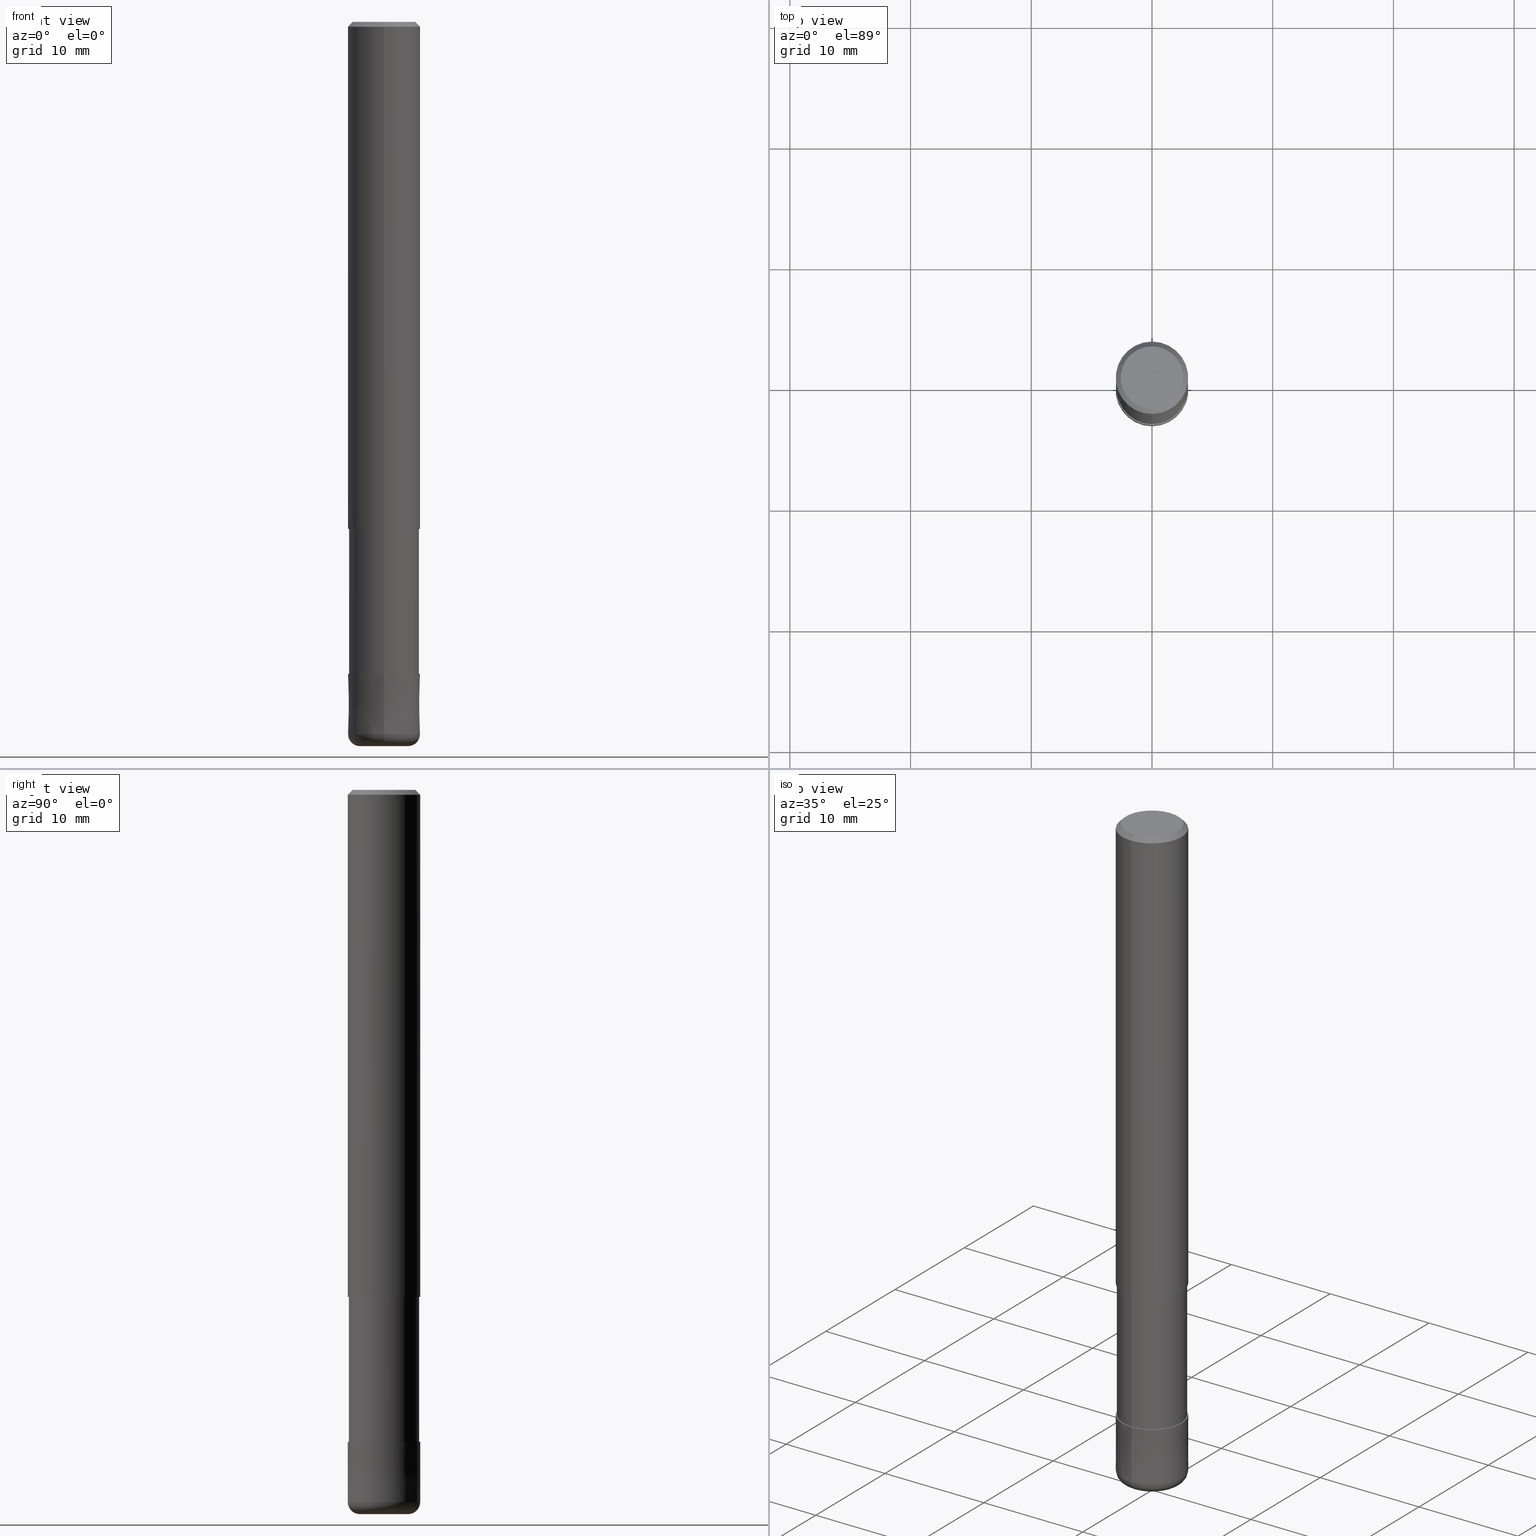
[diagram: canonical four-view strip — front | top / right | iso, engineering-drawing reading convention]
A machine part, canonical four-view strip (front | top / right | iso — engineering-drawing reading convention). The complete STEP part file that produces these views, byte-faithful:
ISO-10303-21;
HEADER;
FILE_DESCRIPTION(('no description'),'unknown implementation level');
FILE_NAME('CRRS4060-10-18-Huellk.stp','  ',('CIMSOURCE GmbH'),('CADClick - KiM GmbH - www.kimweb.de'),'unknown preprocess','ACIS','unknown authorization');
FILE_SCHEMA(('automotive_design'));
ENDSEC;
DATA;
#1=MECHANICAL_DESIGN_GEOMETRIC_PRESENTATION_REPRESENTATION(' ',(#14,#15,#16,#17,#18,#19,#20,#21,#22,#23,#24,#25,#26,#27,#28,#29,#30,#31,#32,#33,#34,#35,#36,#37,#38,#39,#40,#41,#42,#43,#44,#45,#46,#47,#48,#49,#50,#51,#52,#53,#54,#55,#56,#57,#58,#59,#60,#61,#62,#63,#64,#65,#66,#67,#68,#69,#70,#71,#72),#10);
#2=PRODUCT_DEFINITION_CONTEXT('',#73,'design');
#3=APPLICATION_PROTOCOL_DEFINITION('INTERNATIONAL STANDARD','automotive_design',1994,#73);
#4=PRODUCT_CATEGORY_RELATIONSHIP('NONE','NONE',#74,#75);
#5=SHAPE_DEFINITION_REPRESENTATION(#76,#77);
#6=PRODUCT_DEFINITION_CONTEXT('',#78,'design');
#7=APPLICATION_PROTOCOL_DEFINITION('INTERNATIONAL STANDARD','automotive_design',1994,#78);
#8=PRODUCT_CATEGORY_RELATIONSHIP('NONE','NONE',#79,#80);
#9=SHAPE_DEFINITION_REPRESENTATION(#81,#82);
#10= (GEOMETRIC_REPRESENTATION_CONTEXT(3)GLOBAL_UNCERTAINTY_ASSIGNED_CONTEXT((#85))GLOBAL_UNIT_ASSIGNED_CONTEXT((#87,#88,#89))REPRESENTATION_CONTEXT('NONE','WORKSPACE'));
#14=STYLED_ITEM('',(#91),#92);
#15=STYLED_ITEM('',(#93),#94);
#16=STYLED_ITEM('',(#95),#96);
#17=STYLED_ITEM('',(#97),#98);
#18=STYLED_ITEM('',(#99),#100);
#19=STYLED_ITEM('',(#101),#102);
#20=STYLED_ITEM('',(#103),#104);
#21=STYLED_ITEM('',(#105),#106);
#22=STYLED_ITEM('',(#107),#108);
#23=STYLED_ITEM('',(#109),#110);
#24=STYLED_ITEM('',(#111),#112);
#25=STYLED_ITEM('',(#113),#114);
#26=STYLED_ITEM('',(#115),#116);
#27=STYLED_ITEM('',(#117),#118);
#28=STYLED_ITEM('',(#119),#120);
#29=STYLED_ITEM('',(#121),#122);
#30=STYLED_ITEM('',(#123),#124);
#31=STYLED_ITEM('',(#125),#126);
#32=STYLED_ITEM('',(#127),#128);
#33=STYLED_ITEM('',(#129),#130);
#34=STYLED_ITEM('',(#131),#132);
#35=STYLED_ITEM('',(#133),#134);
#36=STYLED_ITEM('',(#135),#136);
#37=STYLED_ITEM('',(#137),#138);
#38=STYLED_ITEM('',(#139),#140);
#39=STYLED_ITEM('',(#141),#142);
#40=STYLED_ITEM('',(#143),#144);
#41=STYLED_ITEM('',(#145),#146);
#42=STYLED_ITEM('',(#147),#148);
#43=STYLED_ITEM('',(#149),#150);
#44=STYLED_ITEM('',(#151),#152);
#45=STYLED_ITEM('',(#153),#154);
#46=STYLED_ITEM('',(#155),#156);
#47=STYLED_ITEM('',(#157),#158);
#48=STYLED_ITEM('',(#159),#160);
#49=STYLED_ITEM('',(#161),#162);
#50=STYLED_ITEM('',(#163),#164);
#51=STYLED_ITEM('',(#165),#166);
#52=STYLED_ITEM('',(#167),#168);
#53=STYLED_ITEM('',(#169),#170);
#54=STYLED_ITEM('',(#171),#172);
#55=STYLED_ITEM('',(#173),#174);
#56=STYLED_ITEM('',(#175),#176);
#57=STYLED_ITEM('',(#177),#178);
#58=STYLED_ITEM('',(#179),#180);
#59=STYLED_ITEM('',(#181),#182);
#60=STYLED_ITEM('',(#183),#184);
#61=STYLED_ITEM('',(#185),#186);
#62=STYLED_ITEM('',(#187),#188);
#63=STYLED_ITEM('',(#189),#190);
#64=STYLED_ITEM('',(#191),#192);
#65=STYLED_ITEM('',(#193),#194);
#66=STYLED_ITEM('',(#195),#196);
#67=STYLED_ITEM('',(#197),#198);
#68=STYLED_ITEM('',(#199),#200);
#69=STYLED_ITEM('',(#201),#202);
#70=STYLED_ITEM('',(#203),#204);
#71=STYLED_ITEM('',(#205),#206);
#72=STYLED_ITEM('',(#207),#208);
#73=APPLICATION_CONTEXT(' ');
#74=PRODUCT_CATEGORY('part','NONE');
#75=PRODUCT_RELATED_PRODUCT_CATEGORY('detail',' ',(#209));
#76=PRODUCT_DEFINITION_SHAPE('NONE','NONE',#210);
#77=ADVANCED_BREP_SHAPE_REPRESENTATION('1',(#184,#211),#10);
#78=APPLICATION_CONTEXT(' ');
#79=PRODUCT_CATEGORY('part','NONE');
#80=PRODUCT_RELATED_PRODUCT_CATEGORY('detail',' ',(#212));
#81=PRODUCT_DEFINITION_SHAPE('NONE','NONE',#213);
#82=ADVANCED_BREP_SHAPE_REPRESENTATION('2',(#138,#214),#10);
#85=UNCERTAINTY_MEASURE_WITH_UNIT(LENGTH_MEASURE(1.0E-006),#87,'','');
#87= (CONVERSION_BASED_UNIT('MILLIMETRE',#217)LENGTH_UNIT()NAMED_UNIT(#220));
#88= (NAMED_UNIT(#222)PLANE_ANGLE_UNIT()SI_UNIT($,.RADIAN.));
#89= (NAMED_UNIT(#222)SOLID_ANGLE_UNIT()SI_UNIT($,.STERADIAN.));
#91=PRESENTATION_STYLE_ASSIGNMENT((#228));
#92=ADVANCED_FACE('',(#229,#230),#231,.T.);
#93=PRESENTATION_STYLE_ASSIGNMENT((#232));
#94=ADVANCED_FACE('',(#233),#234,.T.);
#95=PRESENTATION_STYLE_ASSIGNMENT((#235));
#96=EDGE_CURVE('',#130,#132,#236,.T.);
#97=PRESENTATION_STYLE_ASSIGNMENT((#237));
#98=VERTEX_POINT('',#238);
#99=PRESENTATION_STYLE_ASSIGNMENT((#239));
#100=VERTEX_POINT('',#240);
#101=PRESENTATION_STYLE_ASSIGNMENT((#241));
#102=EDGE_CURVE('',#98,#134,#242,.T.);
#103=PRESENTATION_STYLE_ASSIGNMENT((#243));
#104=ADVANCED_FACE('',(#244),#245,.T.);
#105=PRESENTATION_STYLE_ASSIGNMENT((#246));
#106=EDGE_CURVE('',#140,#144,#247,.T.);
#107=PRESENTATION_STYLE_ASSIGNMENT((#248));
#108=ADVANCED_FACE('',(#249),#250,.T.);
#109=PRESENTATION_STYLE_ASSIGNMENT((#251));
#110=ADVANCED_FACE('',(#252),#253,.T.);
#111=PRESENTATION_STYLE_ASSIGNMENT((#254));
#112=EDGE_CURVE('',#134,#156,#255,.T.);
#113=PRESENTATION_STYLE_ASSIGNMENT((#256));
#114=VERTEX_POINT('',#257);
#115=PRESENTATION_STYLE_ASSIGNMENT((#258));
#116=EDGE_CURVE('',#186,#140,#259,.T.);
#117=PRESENTATION_STYLE_ASSIGNMENT((#260));
#118=ADVANCED_FACE('',(#261),#262,.T.);
#119=PRESENTATION_STYLE_ASSIGNMENT((#263));
#120=EDGE_CURVE('',#144,#140,#264,.T.);
#121=PRESENTATION_STYLE_ASSIGNMENT((#265));
#122=EDGE_CURVE('',#134,#98,#266,.T.);
#123=PRESENTATION_STYLE_ASSIGNMENT((#267));
#124=EDGE_CURVE('',#132,#164,#268,.T.);
#125=PRESENTATION_STYLE_ASSIGNMENT((#269));
#126=EDGE_CURVE('',#204,#142,#270,.T.);
#127=PRESENTATION_STYLE_ASSIGNMENT((#271));
#128=VERTEX_POINT('',#272);
#129=PRESENTATION_STYLE_ASSIGNMENT((#273));
#130=VERTEX_POINT('',#274);
#131=PRESENTATION_STYLE_ASSIGNMENT((#275));
#132=VERTEX_POINT('',#276);
#133=PRESENTATION_STYLE_ASSIGNMENT((#277));
#134=VERTEX_POINT('',#278);
#135=PRESENTATION_STYLE_ASSIGNMENT((#279));
#136=EDGE_CURVE('',#186,#128,#280,.T.);
#137=PRESENTATION_STYLE_ASSIGNMENT((#281));
#138=MANIFOLD_SOLID_BREP('2',#282);
#139=PRESENTATION_STYLE_ASSIGNMENT((#283));
#140=VERTEX_POINT('',#284);
#141=PRESENTATION_STYLE_ASSIGNMENT((#285));
#142=VERTEX_POINT('',#286);
#143=PRESENTATION_STYLE_ASSIGNMENT((#287));
#144=VERTEX_POINT('',#288);
#145=PRESENTATION_STYLE_ASSIGNMENT((#289));
#146=EDGE_CURVE('',#208,#114,#290,.T.);
#147=PRESENTATION_STYLE_ASSIGNMENT((#291));
#148=ADVANCED_FACE('',(#292),#293,.T.);
#149=PRESENTATION_STYLE_ASSIGNMENT((#294));
#150=ADVANCED_FACE('',(#295),#296,.T.);
#151=PRESENTATION_STYLE_ASSIGNMENT((#297));
#152=ADVANCED_FACE('',(#298),#299,.T.);
#153=PRESENTATION_STYLE_ASSIGNMENT((#300));
#154=EDGE_CURVE('',#142,#182,#301,.T.);
#155=PRESENTATION_STYLE_ASSIGNMENT((#302));
#156=VERTEX_POINT('',#303);
#157=PRESENTATION_STYLE_ASSIGNMENT((#304));
#158=ADVANCED_FACE('',(#305),#306,.T.);
#159=PRESENTATION_STYLE_ASSIGNMENT((#307));
#160=ADVANCED_FACE('',(#308),#309,.T.);
#161=PRESENTATION_STYLE_ASSIGNMENT((#310));
#162=EDGE_CURVE('',#114,#208,#311,.T.);
#163=PRESENTATION_STYLE_ASSIGNMENT((#312));
#164=VERTEX_POINT('',#313);
#165=PRESENTATION_STYLE_ASSIGNMENT((#314));
#166=ADVANCED_FACE('',(#315),#316,.T.);
#167=PRESENTATION_STYLE_ASSIGNMENT((#317));
#168=EDGE_CURVE('',#144,#128,#318,.T.);
#169=PRESENTATION_STYLE_ASSIGNMENT((#319));
#170=EDGE_CURVE('',#156,#130,#320,.T.);
#171=PRESENTATION_STYLE_ASSIGNMENT((#321));
#172=ADVANCED_FACE('',(#322),#323,.T.);
#173=PRESENTATION_STYLE_ASSIGNMENT((#324));
#174=EDGE_CURVE('',#208,#144,#325,.T.);
#175=PRESENTATION_STYLE_ASSIGNMENT((#326));
#176=EDGE_CURVE('',#164,#156,#327,.T.);
#177=PRESENTATION_STYLE_ASSIGNMENT((#328));
#178=EDGE_CURVE('',#204,#100,#329,.T.);
#179=PRESENTATION_STYLE_ASSIGNMENT((#330));
#180=EDGE_CURVE('',#100,#204,#331,.T.);
#181=PRESENTATION_STYLE_ASSIGNMENT((#332));
#182=VERTEX_POINT('',#333);
#183=PRESENTATION_STYLE_ASSIGNMENT((#334));
#184=MANIFOLD_SOLID_BREP('1',#335);
#185=PRESENTATION_STYLE_ASSIGNMENT((#336));
#186=VERTEX_POINT('',#337);
#187=PRESENTATION_STYLE_ASSIGNMENT((#338));
#188=ADVANCED_FACE('',(#339),#340,.T.);
#189=PRESENTATION_STYLE_ASSIGNMENT((#341));
#190=EDGE_CURVE('',#130,#156,#342,.T.);
#191=PRESENTATION_STYLE_ASSIGNMENT((#343));
#192=EDGE_CURVE('',#130,#98,#344,.T.);
#193=PRESENTATION_STYLE_ASSIGNMENT((#345));
#194=EDGE_CURVE('',#182,#100,#346,.T.);
#195=PRESENTATION_STYLE_ASSIGNMENT((#347));
#196=EDGE_CURVE('',#140,#114,#348,.T.);
#197=PRESENTATION_STYLE_ASSIGNMENT((#349));
#198=EDGE_CURVE('',#182,#142,#350,.T.);
#199=PRESENTATION_STYLE_ASSIGNMENT((#351));
#200=EDGE_CURVE('',#128,#186,#352,.T.);
#201=PRESENTATION_STYLE_ASSIGNMENT((#353));
#202=ADVANCED_FACE('',(#354),#355,.T.);
#203=PRESENTATION_STYLE_ASSIGNMENT((#356));
#204=VERTEX_POINT('',#357);
#205=PRESENTATION_STYLE_ASSIGNMENT((#358));
#206=EDGE_CURVE('',#164,#132,#359,.T.);
#207=PRESENTATION_STYLE_ASSIGNMENT((#360));
#208=VERTEX_POINT('',#361);
#209=PRODUCT('1','1','PART-1-DESC',(#362));
#210=PRODUCT_DEFINITION('NONE','NONE',#363,#2);
#211=AXIS2_PLACEMENT_3D('',#364,#365,#366);
#212=PRODUCT('2','2','PART-2-DESC',(#367));
#213=PRODUCT_DEFINITION('NONE','NONE',#368,#6);
#214=AXIS2_PLACEMENT_3D('',#369,#370,#371);
#217=LENGTH_MEASURE_WITH_UNIT(LENGTH_MEASURE(1.0),#372);
#220=DIMENSIONAL_EXPONENTS(1.0,0.0,0.0,0.0,0.0,0.0,0.0);
#222=DIMENSIONAL_EXPONENTS(0.0,0.0,0.0,0.0,0.0,0.0,0.0);
#228=SURFACE_STYLE_USAGE(.BOTH.,#373);
#229=FACE_OUTER_BOUND('',#374,.T.);
#230=FACE_BOUND('',#375,.T.);
#231=PLANE('',#376);
#232=SURFACE_STYLE_USAGE(.BOTH.,#377);
#233=FACE_OUTER_BOUND('',#378,.T.);
#234=CYLINDRICAL_SURFACE('',#379,3.0);
#235=CURVE_STYLE('',#380,POSITIVE_LENGTH_MEASURE(1.0E-006),#381);
#236=CIRCLE('',#382,1.0);
#237=POINT_STYLE(' ',#383,POSITIVE_LENGTH_MEASURE(1.0E-006),#384);
#238=CARTESIAN_POINT('',(3.67369660083175E-016,-2.9999,-54.0));
#239=POINT_STYLE(' ',#385,POSITIVE_LENGTH_MEASURE(1.0E-006),#386);
#240=CARTESIAN_POINT('',(3.56354325930543E-016,-2.90995,-42.0));
#241=CURVE_STYLE('',#387,POSITIVE_LENGTH_MEASURE(1.0E-006),#388);
#242=CIRCLE('',#389,2.9999);
#243=SURFACE_STYLE_USAGE(.BOTH.,#390);
#244=FACE_OUTER_BOUND('',#391,.T.);
#245=CYLINDRICAL_SURFACE('',#392,3.0);
#246=CURVE_STYLE('',#393,POSITIVE_LENGTH_MEASURE(1.0E-006),#394);
#247=CIRCLE('',#395,3.0);
#248=SURFACE_STYLE_USAGE(.BOTH.,#396);
#249=FACE_OUTER_BOUND('',#397,.T.);
#250=TOROIDAL_SURFACE('',#398,2.0,1.0);
#251=SURFACE_STYLE_USAGE(.BOTH.,#399);
#252=FACE_OUTER_BOUND('',#400,.T.);
#253=TOROIDAL_SURFACE('',#401,2.0,1.0);
#254=CURVE_STYLE('',#402,POSITIVE_LENGTH_MEASURE(1.0E-006),#403);
#255=LINE('',#404,#405);
#256=POINT_STYLE(' ',#406,POSITIVE_LENGTH_MEASURE(1.0E-006),#407);
#257=CARTESIAN_POINT('',(3.18397651993818E-016,-2.6,0.0));
#258=CURVE_STYLE('',#408,POSITIVE_LENGTH_MEASURE(1.0E-006),#409);
#259=LINE('',#410,#411);
#260=SURFACE_STYLE_USAGE(.BOTH.,#412);
#261=FACE_OUTER_BOUND('',#413,.T.);
#262=CONICAL_SURFACE('',#414,2.8,0.78539816339745);
#263=CURVE_STYLE('',#415,POSITIVE_LENGTH_MEASURE(1.0E-006),#416);
#264=CIRCLE('',#417,3.0);
#265=CURVE_STYLE('',#418,POSITIVE_LENGTH_MEASURE(1.0E-006),#419);
#266=CIRCLE('',#420,2.9999);
#267=CURVE_STYLE('',#421,POSITIVE_LENGTH_MEASURE(1.0E-006),#422);
#268=CIRCLE('',#423,2.0);
#269=CURVE_STYLE('',#424,POSITIVE_LENGTH_MEASURE(1.0E-006),#425);
#270=LINE('',#426,#427);
#271=POINT_STYLE(' ',#428,POSITIVE_LENGTH_MEASURE(1.0E-006),#429);
#272=CARTESIAN_POINT('',(0.0,3.0,-42.0));
#273=POINT_STYLE(' ',#430,POSITIVE_LENGTH_MEASURE(1.0E-006),#431);
#274=CARTESIAN_POINT('',(3.67381906146713E-016,-3.0,-59.0));
#275=POINT_STYLE(' ',#432,POSITIVE_LENGTH_MEASURE(1.0E-006),#433);
#276=CARTESIAN_POINT('',(2.44921270764475E-016,-2.0,-60.0));
#277=POINT_STYLE(' ',#434,POSITIVE_LENGTH_MEASURE(1.0E-006),#435);
#278=CARTESIAN_POINT('',(0.0,2.9999,-54.0));
#279=CURVE_STYLE('',#436,POSITIVE_LENGTH_MEASURE(1.0E-006),#437);
#280=CIRCLE('',#438,3.0);
#281=SURFACE_STYLE_USAGE(.BOTH.,#439);
#282=CLOSED_SHELL('',(#110,#150,#160,#202,#108,#188));
#283=POINT_STYLE(' ',#440,POSITIVE_LENGTH_MEASURE(1.0E-006),#441);
#284=CARTESIAN_POINT('',(3.67381906146713E-016,-3.0,-0.399999999999999));
#285=POINT_STYLE(' ',#442,POSITIVE_LENGTH_MEASURE(1.0E-006),#443);
#286=CARTESIAN_POINT('',(0.0,2.90995,-54.0));
#287=POINT_STYLE(' ',#444,POSITIVE_LENGTH_MEASURE(1.0E-006),#445);
#288=CARTESIAN_POINT('',(0.0,3.0,-0.399999999999999));
#289=CURVE_STYLE('',#446,POSITIVE_LENGTH_MEASURE(1.0E-006),#447);
#290=CIRCLE('',#448,2.6);
#291=SURFACE_STYLE_USAGE(.BOTH.,#449);
#292=FACE_OUTER_BOUND('',#450,.T.);
#293=CYLINDRICAL_SURFACE('',#451,2.90995);
#294=SURFACE_STYLE_USAGE(.BOTH.,#452);
#295=FACE_OUTER_BOUND('',#453,.T.);
#296=CONICAL_SURFACE('',#454,2.99995,1.99999999973755E-005);
#297=SURFACE_STYLE_USAGE(.BOTH.,#455);
#298=FACE_OUTER_BOUND('',#456,.T.);
#299=PLANE('',#457);
#300=CURVE_STYLE('',#458,POSITIVE_LENGTH_MEASURE(1.0E-006),#459);
#301=CIRCLE('',#460,2.90995);
#302=POINT_STYLE(' ',#461,POSITIVE_LENGTH_MEASURE(1.0E-006),#462);
#303=CARTESIAN_POINT('',(0.0,3.0,-59.0));
#304=SURFACE_STYLE_USAGE(.BOTH.,#463);
#305=FACE_OUTER_BOUND('',#464,.T.);
#306=PLANE('',#465);
#307=SURFACE_STYLE_USAGE(.BOTH.,#466);
#308=FACE_OUTER_BOUND('',#467,.T.);
#309=PLANE('',#468);
#310=CURVE_STYLE('',#469,POSITIVE_LENGTH_MEASURE(1.0E-006),#470);
#311=CIRCLE('',#471,2.6);
#312=POINT_STYLE(' ',#472,POSITIVE_LENGTH_MEASURE(1.0E-006),#473);
#313=CARTESIAN_POINT('',(0.0,2.0,-60.0));
#314=SURFACE_STYLE_USAGE(.BOTH.,#474);
#315=FACE_OUTER_BOUND('',#475,.T.);
#316=CYLINDRICAL_SURFACE('',#476,2.90995);
#317=CURVE_STYLE('',#477,POSITIVE_LENGTH_MEASURE(1.0E-006),#478);
#318=LINE('',#479,#480);
#319=CURVE_STYLE('',#481,POSITIVE_LENGTH_MEASURE(1.0E-006),#482);
#320=CIRCLE('',#483,3.0);
#321=SURFACE_STYLE_USAGE(.BOTH.,#484);
#322=FACE_OUTER_BOUND('',#485,.T.);
#323=CONICAL_SURFACE('',#486,2.8,0.78539816339745);
#324=CURVE_STYLE('',#487,POSITIVE_LENGTH_MEASURE(1.0E-006),#488);
#325=LINE('',#489,#490);
#326=CURVE_STYLE('',#491,POSITIVE_LENGTH_MEASURE(1.0E-006),#492);
#327=CIRCLE('',#493,1.0);
#328=CURVE_STYLE('',#494,POSITIVE_LENGTH_MEASURE(1.0E-006),#495);
#329=CIRCLE('',#496,2.90995);
#330=CURVE_STYLE('',#497,POSITIVE_LENGTH_MEASURE(1.0E-006),#498);
#331=CIRCLE('',#499,2.90995);
#332=POINT_STYLE(' ',#500,POSITIVE_LENGTH_MEASURE(1.0E-006),#501);
#333=CARTESIAN_POINT('',(3.56354325930543E-016,-2.90995,-54.0));
#334=SURFACE_STYLE_USAGE(.BOTH.,#502);
#335=CLOSED_SHELL('',(#148,#94,#172,#92,#158,#118,#104,#166,#152));
#336=POINT_STYLE(' ',#503,POSITIVE_LENGTH_MEASURE(1.0E-006),#504);
#337=CARTESIAN_POINT('',(3.67381906146713E-016,-3.0,-42.0));
#338=SURFACE_STYLE_USAGE(.BOTH.,#505);
#339=FACE_OUTER_BOUND('',#506,.T.);
#340=PLANE('',#507);
#341=CURVE_STYLE('',#508,POSITIVE_LENGTH_MEASURE(1.0E-006),#509);
#342=CIRCLE('',#510,3.0);
#343=CURVE_STYLE('',#511,POSITIVE_LENGTH_MEASURE(1.0E-006),#512);
#344=LINE('',#513,#514);
#345=CURVE_STYLE('',#515,POSITIVE_LENGTH_MEASURE(1.0E-006),#516);
#346=LINE('',#517,#518);
#347=CURVE_STYLE('',#519,POSITIVE_LENGTH_MEASURE(1.0E-006),#520);
#348=LINE('',#521,#522);
#349=CURVE_STYLE('',#523,POSITIVE_LENGTH_MEASURE(1.0E-006),#524);
#350=CIRCLE('',#525,2.90995);
#351=CURVE_STYLE('',#526,POSITIVE_LENGTH_MEASURE(1.0E-006),#527);
#352=CIRCLE('',#528,3.0);
#353=SURFACE_STYLE_USAGE(.BOTH.,#529);
#354=FACE_OUTER_BOUND('',#530,.T.);
#355=CONICAL_SURFACE('',#531,2.99995,1.99999999973755E-005);
#356=POINT_STYLE(' ',#532,POSITIVE_LENGTH_MEASURE(1.0E-006),#533);
#357=CARTESIAN_POINT('',(0.0,2.90995,-42.0));
#358=CURVE_STYLE('',#534,POSITIVE_LENGTH_MEASURE(1.0E-006),#535);
#359=CIRCLE('',#536,2.0);
#360=POINT_STYLE(' ',#537,POSITIVE_LENGTH_MEASURE(1.0E-006),#538);
#361=CARTESIAN_POINT('',(0.0,2.6,0.0));
#362=PRODUCT_CONTEXT('',#73,'mechanical');
#363=PRODUCT_DEFINITION_FORMATION_WITH_SPECIFIED_SOURCE(' ','NONE',#209,.NOT_KNOWN.);
#364=CARTESIAN_POINT('',(0.0,0.0,0.0));
#365=DIRECTION('',(0.0,0.0,1.0));
#366=DIRECTION('',(1.0,0.0,0.0));
#367=PRODUCT_CONTEXT('',#78,'mechanical');
#368=PRODUCT_DEFINITION_FORMATION_WITH_SPECIFIED_SOURCE(' ','NONE',#212,.NOT_KNOWN.);
#369=CARTESIAN_POINT('',(0.0,0.0,0.0));
#370=DIRECTION('',(0.0,0.0,1.0));
#371=DIRECTION('',(1.0,0.0,0.0));
#372= (NAMED_UNIT(#220)LENGTH_UNIT()SI_UNIT(.MILLI.,.METRE.));
#373=SURFACE_SIDE_STYLE('',(#540));
#374=EDGE_LOOP('',(#541,#542));
#375=EDGE_LOOP('',(#543,#544));
#376=AXIS2_PLACEMENT_3D('',#545,#546,#547);
#377=SURFACE_SIDE_STYLE('',(#548));
#378=EDGE_LOOP('',(#549,#550,#551,#552));
#379=AXIS2_PLACEMENT_3D('',#553,#554,#555);
#380=DRAUGHTING_PRE_DEFINED_CURVE_FONT('continuous');
#381=COLOUR_RGB('',0.800000011920929,0.800000011920929,0.800000011920929);
#382=AXIS2_PLACEMENT_3D('',#556,#557,#558);
#383=PRE_DEFINED_MARKER('');
#384=COLOUR_RGB('',0.800000011920929,0.800000011920929,0.800000011920929);
#385=PRE_DEFINED_MARKER('');
#386=COLOUR_RGB('',0.498039215803146,0.498039215803146,0.498039215803146);
#387=DRAUGHTING_PRE_DEFINED_CURVE_FONT('continuous');
#388=COLOUR_RGB('',0.800000011920929,0.800000011920929,0.800000011920929);
#389=AXIS2_PLACEMENT_3D('',#559,#560,#561);
#390=SURFACE_SIDE_STYLE('',(#562));
#391=EDGE_LOOP('',(#563,#564,#565,#566));
#392=AXIS2_PLACEMENT_3D('',#567,#568,#569);
#393=DRAUGHTING_PRE_DEFINED_CURVE_FONT('continuous');
#394=COLOUR_RGB('',0.498039215803146,0.498039215803146,0.498039215803146);
#395=AXIS2_PLACEMENT_3D('',#570,#571,#572);
#396=SURFACE_SIDE_STYLE('',(#573));
#397=EDGE_LOOP('',(#574,#575,#576,#577));
#398=AXIS2_PLACEMENT_3D('',#578,#579,#580);
#399=SURFACE_SIDE_STYLE('',(#581));
#400=EDGE_LOOP('',(#582,#583,#584,#585));
#401=AXIS2_PLACEMENT_3D('',#586,#587,#588);
#402=DRAUGHTING_PRE_DEFINED_CURVE_FONT('continuous');
#403=COLOUR_RGB('',0.800000011920929,0.800000011920929,0.800000011920929);
#404=CARTESIAN_POINT('',(-3.67375783114944E-016,2.99995,-56.5));
#405=VECTOR('',#589,1.0);
#406=PRE_DEFINED_MARKER('');
#407=COLOUR_RGB('',0.498039215803146,0.498039215803146,0.498039215803146);
#408=DRAUGHTING_PRE_DEFINED_CURVE_FONT('continuous');
#409=COLOUR_RGB('',0.498039215803146,0.498039215803146,0.498039215803146);
#410=CARTESIAN_POINT('',(3.67381906146713E-016,-3.0,-21.2));
#411=VECTOR('',#590,1.0);
#412=SURFACE_SIDE_STYLE('',(#591));
#413=EDGE_LOOP('',(#592,#593,#594,#595));
#414=AXIS2_PLACEMENT_3D('',#596,#597,#598);
#415=DRAUGHTING_PRE_DEFINED_CURVE_FONT('continuous');
#416=COLOUR_RGB('',0.498039215803146,0.498039215803146,0.498039215803146);
#417=AXIS2_PLACEMENT_3D('',#599,#600,#601);
#418=DRAUGHTING_PRE_DEFINED_CURVE_FONT('continuous');
#419=COLOUR_RGB('',0.800000011920929,0.800000011920929,0.800000011920929);
#420=AXIS2_PLACEMENT_3D('',#602,#603,#604);
#421=DRAUGHTING_PRE_DEFINED_CURVE_FONT('continuous');
#422=COLOUR_RGB('',0.800000011920929,0.800000011920929,0.800000011920929);
#423=AXIS2_PLACEMENT_3D('',#605,#606,#607);
#424=DRAUGHTING_PRE_DEFINED_CURVE_FONT('continuous');
#425=COLOUR_RGB('',0.498039215803146,0.498039215803146,0.498039215803146);
#426=CARTESIAN_POINT('',(-3.56354325930543E-016,2.90995,-48.0));
#427=VECTOR('',#608,1.0);
#428=PRE_DEFINED_MARKER('');
#429=COLOUR_RGB('',0.498039215803146,0.498039215803146,0.498039215803146);
#430=PRE_DEFINED_MARKER('');
#431=COLOUR_RGB('',0.800000011920929,0.800000011920929,0.800000011920929);
#432=PRE_DEFINED_MARKER('');
#433=COLOUR_RGB('',0.800000011920929,0.800000011920929,0.800000011920929);
#434=PRE_DEFINED_MARKER('');
#435=COLOUR_RGB('',0.800000011920929,0.800000011920929,0.800000011920929);
#436=DRAUGHTING_PRE_DEFINED_CURVE_FONT('continuous');
#437=COLOUR_RGB('',0.498039215803146,0.498039215803146,0.498039215803146);
#438=AXIS2_PLACEMENT_3D('',#609,#610,#611);
#439=SURFACE_SIDE_STYLE('',(#612));
#440=PRE_DEFINED_MARKER('');
#441=COLOUR_RGB('',0.498039215803146,0.498039215803146,0.498039215803146);
#442=PRE_DEFINED_MARKER('');
#443=COLOUR_RGB('',0.498039215803146,0.498039215803146,0.498039215803146);
#444=PRE_DEFINED_MARKER('');
#445=COLOUR_RGB('',0.498039215803146,0.498039215803146,0.498039215803146);
#446=DRAUGHTING_PRE_DEFINED_CURVE_FONT('continuous');
#447=COLOUR_RGB('',0.498039215803146,0.498039215803146,0.498039215803146);
#448=AXIS2_PLACEMENT_3D('',#613,#614,#615);
#449=SURFACE_SIDE_STYLE('',(#616));
#450=EDGE_LOOP('',(#617,#618,#619,#620));
#451=AXIS2_PLACEMENT_3D('',#621,#622,#623);
#452=SURFACE_SIDE_STYLE('',(#624));
#453=EDGE_LOOP('',(#625,#626,#627,#628));
#454=AXIS2_PLACEMENT_3D('',#629,#630,#631);
#455=SURFACE_SIDE_STYLE('',(#632));
#456=EDGE_LOOP('',(#633,#634));
#457=AXIS2_PLACEMENT_3D('',#635,#636,#637);
#458=DRAUGHTING_PRE_DEFINED_CURVE_FONT('continuous');
#459=COLOUR_RGB('',0.498039215803146,0.498039215803146,0.498039215803146);
#460=AXIS2_PLACEMENT_3D('',#638,#639,#640);
#461=PRE_DEFINED_MARKER('');
#462=COLOUR_RGB('',0.800000011920929,0.800000011920929,0.800000011920929);
#463=SURFACE_SIDE_STYLE('',(#641));
#464=EDGE_LOOP('',(#642,#643));
#465=AXIS2_PLACEMENT_3D('',#644,#645,#646);
#466=SURFACE_SIDE_STYLE('',(#647));
#467=EDGE_LOOP('',(#648,#649));
#468=AXIS2_PLACEMENT_3D('',#650,#651,#652);
#469=DRAUGHTING_PRE_DEFINED_CURVE_FONT('continuous');
#470=COLOUR_RGB('',0.498039215803146,0.498039215803146,0.498039215803146);
#471=AXIS2_PLACEMENT_3D('',#653,#654,#655);
#472=PRE_DEFINED_MARKER('');
#473=COLOUR_RGB('',0.800000011920929,0.800000011920929,0.800000011920929);
#474=SURFACE_SIDE_STYLE('',(#656));
#475=EDGE_LOOP('',(#657,#658,#659,#660));
#476=AXIS2_PLACEMENT_3D('',#661,#662,#663);
#477=DRAUGHTING_PRE_DEFINED_CURVE_FONT('continuous');
#478=COLOUR_RGB('',0.498039215803146,0.498039215803146,0.498039215803146);
#479=CARTESIAN_POINT('',(-3.67381906146713E-016,3.0,-21.2));
#480=VECTOR('',#664,1.0);
#481=DRAUGHTING_PRE_DEFINED_CURVE_FONT('continuous');
#482=COLOUR_RGB('',0.800000011920929,0.800000011920929,0.800000011920929);
#483=AXIS2_PLACEMENT_3D('',#665,#666,#667);
#484=SURFACE_SIDE_STYLE('',(#668));
#485=EDGE_LOOP('',(#669,#670,#671,#672));
#486=AXIS2_PLACEMENT_3D('',#673,#674,#675);
#487=DRAUGHTING_PRE_DEFINED_CURVE_FONT('continuous');
#488=COLOUR_RGB('',0.498039215803146,0.498039215803146,0.498039215803146);
#489=CARTESIAN_POINT('',(-3.42889779070266E-016,2.8,-0.199999999999996));
#490=VECTOR('',#676,1.0);
#491=DRAUGHTING_PRE_DEFINED_CURVE_FONT('continuous');
#492=COLOUR_RGB('',0.800000011920929,0.800000011920929,0.800000011920929);
#493=AXIS2_PLACEMENT_3D('',#677,#678,#679);
#494=DRAUGHTING_PRE_DEFINED_CURVE_FONT('continuous');
#495=COLOUR_RGB('',0.498039215803146,0.498039215803146,0.498039215803146);
#496=AXIS2_PLACEMENT_3D('',#680,#681,#682);
#497=DRAUGHTING_PRE_DEFINED_CURVE_FONT('continuous');
#498=COLOUR_RGB('',0.498039215803146,0.498039215803146,0.498039215803146);
#499=AXIS2_PLACEMENT_3D('',#683,#684,#685);
#500=PRE_DEFINED_MARKER('');
#501=COLOUR_RGB('',0.498039215803146,0.498039215803146,0.498039215803146);
#502=SURFACE_SIDE_STYLE('',(#686));
#503=PRE_DEFINED_MARKER('');
#504=COLOUR_RGB('',0.498039215803146,0.498039215803146,0.498039215803146);
#505=SURFACE_SIDE_STYLE('',(#687));
#506=EDGE_LOOP('',(#688,#689));
#507=AXIS2_PLACEMENT_3D('',#690,#691,#692);
#508=DRAUGHTING_PRE_DEFINED_CURVE_FONT('continuous');
#509=COLOUR_RGB('',0.800000011920929,0.800000011920929,0.800000011920929);
#510=AXIS2_PLACEMENT_3D('',#693,#694,#695);
#511=DRAUGHTING_PRE_DEFINED_CURVE_FONT('continuous');
#512=COLOUR_RGB('',0.800000011920929,0.800000011920929,0.800000011920929);
#513=CARTESIAN_POINT('',(3.67375783114944E-016,-2.99995,-56.5));
#514=VECTOR('',#696,1.0);
#515=DRAUGHTING_PRE_DEFINED_CURVE_FONT('continuous');
#516=COLOUR_RGB('',0.498039215803146,0.498039215803146,0.498039215803146);
#517=CARTESIAN_POINT('',(3.56354325930543E-016,-2.90995,-48.0));
#518=VECTOR('',#697,1.0);
#519=DRAUGHTING_PRE_DEFINED_CURVE_FONT('continuous');
#520=COLOUR_RGB('',0.498039215803146,0.498039215803146,0.498039215803146);
#521=CARTESIAN_POINT('',(3.42889779070266E-016,-2.8,-0.199999999999996));
#522=VECTOR('',#698,1.0);
#523=DRAUGHTING_PRE_DEFINED_CURVE_FONT('continuous');
#524=COLOUR_RGB('',0.498039215803146,0.498039215803146,0.498039215803146);
#525=AXIS2_PLACEMENT_3D('',#699,#700,#701);
#526=DRAUGHTING_PRE_DEFINED_CURVE_FONT('continuous');
#527=COLOUR_RGB('',0.498039215803146,0.498039215803146,0.498039215803146);
#528=AXIS2_PLACEMENT_3D('',#702,#703,#704);
#529=SURFACE_SIDE_STYLE('',(#705));
#530=EDGE_LOOP('',(#706,#707,#708,#709));
#531=AXIS2_PLACEMENT_3D('',#710,#711,#712);
#532=PRE_DEFINED_MARKER('');
#533=COLOUR_RGB('',0.498039215803146,0.498039215803146,0.498039215803146);
#534=DRAUGHTING_PRE_DEFINED_CURVE_FONT('continuous');
#535=COLOUR_RGB('',0.800000011920929,0.800000011920929,0.800000011920929);
#536=AXIS2_PLACEMENT_3D('',#713,#714,#715);
#537=PRE_DEFINED_MARKER('');
#538=COLOUR_RGB('',0.498039215803146,0.498039215803146,0.498039215803146);
#540=SURFACE_STYLE_FILL_AREA(#716);
#541=ORIENTED_EDGE('',*,*,#200,.T.);
#542=ORIENTED_EDGE('',*,*,#136,.T.);
#543=ORIENTED_EDGE('',*,*,#178,.F.);
#544=ORIENTED_EDGE('',*,*,#180,.F.);
#545=CARTESIAN_POINT('',(0.0,1.5,-42.0));
#546=DIRECTION('',(0.0,0.0,-1.0));
#547=DIRECTION('',(0.0,1.0,0.0));
#548=SURFACE_STYLE_FILL_AREA(#717);
#549=ORIENTED_EDGE('',*,*,#168,.F.);
#550=ORIENTED_EDGE('',*,*,#120,.T.);
#551=ORIENTED_EDGE('',*,*,#116,.F.);
#552=ORIENTED_EDGE('',*,*,#200,.F.);
#553=CARTESIAN_POINT('',(0.0,0.0,-21.2));
#554=DIRECTION('',(-0.0,-0.0,1.0));
#555=DIRECTION('',(0.0,1.0,0.0));
#556=CARTESIAN_POINT('',(2.44921270764475E-016,-2.0,-59.0));
#557=DIRECTION('',(1.0,1.22460635382238E-016,0.0));
#558=DIRECTION('',(1.22460635382238E-016,-1.0,-0.0));
#559=CARTESIAN_POINT('',(0.0,0.0,-54.0));
#560=DIRECTION('',(0.0,0.0,-1.0));
#561=DIRECTION('',(0.0,1.0,0.0));
#562=SURFACE_STYLE_FILL_AREA(#718);
#563=ORIENTED_EDGE('',*,*,#168,.T.);
#564=ORIENTED_EDGE('',*,*,#136,.F.);
#565=ORIENTED_EDGE('',*,*,#116,.T.);
#566=ORIENTED_EDGE('',*,*,#106,.T.);
#567=CARTESIAN_POINT('',(0.0,0.0,-21.2));
#568=DIRECTION('',(-0.0,-0.0,1.0));
#569=DIRECTION('',(0.0,1.0,0.0));
#570=CARTESIAN_POINT('',(0.0,0.0,-0.399999999999999));
#571=DIRECTION('',(0.0,0.0,-1.0));
#572=DIRECTION('',(0.0,1.0,0.0));
#573=SURFACE_STYLE_FILL_AREA(#719);
#574=ORIENTED_EDGE('',*,*,#96,.T.);
#575=ORIENTED_EDGE('',*,*,#206,.F.);
#576=ORIENTED_EDGE('',*,*,#176,.T.);
#577=ORIENTED_EDGE('',*,*,#170,.T.);
#578=CARTESIAN_POINT('',(0.0,0.0,-59.0));
#579=DIRECTION('',(0.0,0.0,-1.0));
#580=DIRECTION('',(0.0,-1.0,0.0));
#581=SURFACE_STYLE_FILL_AREA(#720);
#582=ORIENTED_EDGE('',*,*,#96,.F.);
#583=ORIENTED_EDGE('',*,*,#190,.T.);
#584=ORIENTED_EDGE('',*,*,#176,.F.);
#585=ORIENTED_EDGE('',*,*,#124,.F.);
#586=CARTESIAN_POINT('',(0.0,0.0,-59.0));
#587=DIRECTION('',(0.0,0.0,-1.0));
#588=DIRECTION('',(0.0,-1.0,0.0));
#589=DIRECTION('',(-2.44921270716008E-021,1.99999999960422E-005,-0.9999999998));
#590=DIRECTION('',(-0.0,-0.0,1.0));
#591=SURFACE_STYLE_FILL_AREA(#721);
#592=ORIENTED_EDGE('',*,*,#174,.T.);
#593=ORIENTED_EDGE('',*,*,#106,.F.);
#594=ORIENTED_EDGE('',*,*,#196,.T.);
#595=ORIENTED_EDGE('',*,*,#162,.T.);
#596=CARTESIAN_POINT('',(0.0,0.0,-0.199999999999996));
#597=DIRECTION('',(0.0,-0.0,-1.0));
#598=DIRECTION('',(0.0,1.0,0.0));
#599=CARTESIAN_POINT('',(0.0,0.0,-0.399999999999999));
#600=DIRECTION('',(0.0,0.0,-1.0));
#601=DIRECTION('',(0.0,1.0,0.0));
#602=CARTESIAN_POINT('',(0.0,0.0,-54.0));
#603=DIRECTION('',(0.0,0.0,-1.0));
#604=DIRECTION('',(0.0,1.0,0.0));
#605=CARTESIAN_POINT('',(0.0,0.0,-60.0));
#606=DIRECTION('',(0.0,0.0,-1.0));
#607=DIRECTION('',(0.0,1.0,0.0));
#608=DIRECTION('',(0.0,0.0,-1.0));
#609=CARTESIAN_POINT('',(0.0,0.0,-42.0));
#610=DIRECTION('',(0.0,0.0,-1.0));
#611=DIRECTION('',(0.0,1.0,0.0));
#612=SURFACE_STYLE_FILL_AREA(#722);
#613=CARTESIAN_POINT('',(0.0,0.0,0.0));
#614=DIRECTION('',(0.0,0.0,-1.0));
#615=DIRECTION('',(0.0,1.0,0.0));
#616=SURFACE_STYLE_FILL_AREA(#723);
#617=ORIENTED_EDGE('',*,*,#126,.F.);
#618=ORIENTED_EDGE('',*,*,#178,.T.);
#619=ORIENTED_EDGE('',*,*,#194,.F.);
#620=ORIENTED_EDGE('',*,*,#154,.F.);
#621=CARTESIAN_POINT('',(0.0,0.0,-48.0));
#622=DIRECTION('',(-0.0,-0.0,1.0));
#623=DIRECTION('',(0.0,1.0,0.0));
#624=SURFACE_STYLE_FILL_AREA(#724);
#625=ORIENTED_EDGE('',*,*,#112,.F.);
#626=ORIENTED_EDGE('',*,*,#122,.T.);
#627=ORIENTED_EDGE('',*,*,#192,.F.);
#628=ORIENTED_EDGE('',*,*,#170,.F.);
#629=CARTESIAN_POINT('',(0.0,0.0,-56.5));
#630=DIRECTION('',(0.0,-0.0,-1.0));
#631=DIRECTION('',(0.0,1.0,0.0));
#632=SURFACE_STYLE_FILL_AREA(#725);
#633=ORIENTED_EDGE('',*,*,#154,.T.);
#634=ORIENTED_EDGE('',*,*,#198,.T.);
#635=CARTESIAN_POINT('',(0.0,1.454975,-54.0));
#636=DIRECTION('',(0.0,0.0,-1.0));
#637=DIRECTION('',(0.0,1.0,0.0));
#638=CARTESIAN_POINT('',(0.0,0.0,-54.0));
#639=DIRECTION('',(0.0,0.0,-1.0));
#640=DIRECTION('',(0.0,1.0,0.0));
#641=SURFACE_STYLE_FILL_AREA(#726);
#642=ORIENTED_EDGE('',*,*,#146,.F.);
#643=ORIENTED_EDGE('',*,*,#162,.F.);
#644=CARTESIAN_POINT('',(0.0,1.3,0.0));
#645=DIRECTION('',(-0.0,0.0,1.0));
#646=DIRECTION('',(0.0,-1.0,0.0));
#647=SURFACE_STYLE_FILL_AREA(#727);
#648=ORIENTED_EDGE('',*,*,#122,.F.);
#649=ORIENTED_EDGE('',*,*,#102,.F.);
#650=CARTESIAN_POINT('',(0.0,1.49995,-54.0));
#651=DIRECTION('',(-0.0,0.0,1.0));
#652=DIRECTION('',(0.0,-1.0,0.0));
#653=CARTESIAN_POINT('',(0.0,0.0,0.0));
#654=DIRECTION('',(0.0,0.0,-1.0));
#655=DIRECTION('',(0.0,1.0,0.0));
#656=SURFACE_STYLE_FILL_AREA(#728);
#657=ORIENTED_EDGE('',*,*,#126,.T.);
#658=ORIENTED_EDGE('',*,*,#198,.F.);
#659=ORIENTED_EDGE('',*,*,#194,.T.);
#660=ORIENTED_EDGE('',*,*,#180,.T.);
#661=CARTESIAN_POINT('',(0.0,0.0,-48.0));
#662=DIRECTION('',(-0.0,-0.0,1.0));
#663=DIRECTION('',(0.0,1.0,0.0));
#664=DIRECTION('',(0.0,0.0,-1.0));
#665=CARTESIAN_POINT('',(0.0,0.0,-59.0));
#666=DIRECTION('',(0.0,0.0,-1.0));
#667=DIRECTION('',(0.0,1.0,0.0));
#668=SURFACE_STYLE_FILL_AREA(#729);
#669=ORIENTED_EDGE('',*,*,#174,.F.);
#670=ORIENTED_EDGE('',*,*,#146,.T.);
#671=ORIENTED_EDGE('',*,*,#196,.F.);
#672=ORIENTED_EDGE('',*,*,#120,.F.);
#673=CARTESIAN_POINT('',(0.0,0.0,-0.199999999999996));
#674=DIRECTION('',(0.0,-0.0,-1.0));
#675=DIRECTION('',(0.0,1.0,0.0));
#676=DIRECTION('',(-8.65927457071937E-017,0.707106781186549,-0.707106781186546));
#677=CARTESIAN_POINT('',(-2.44921270764475E-016,2.0,-59.0));
#678=DIRECTION('',(1.0,1.22460635382238E-016,0.0));
#679=DIRECTION('',(-1.22460635382238E-016,1.0,0.0));
#680=CARTESIAN_POINT('',(0.0,0.0,-42.0));
#681=DIRECTION('',(0.0,0.0,-1.0));
#682=DIRECTION('',(0.0,1.0,0.0));
#683=CARTESIAN_POINT('',(0.0,0.0,-42.0));
#684=DIRECTION('',(0.0,0.0,-1.0));
#685=DIRECTION('',(0.0,1.0,0.0));
#686=SURFACE_STYLE_FILL_AREA(#730);
#687=SURFACE_STYLE_FILL_AREA(#731);
#688=ORIENTED_EDGE('',*,*,#206,.T.);
#689=ORIENTED_EDGE('',*,*,#124,.T.);
#690=CARTESIAN_POINT('',(0.0,1.0,-60.0));
#691=DIRECTION('',(0.0,0.0,-1.0));
#692=DIRECTION('',(0.0,1.0,0.0));
#693=CARTESIAN_POINT('',(0.0,0.0,-59.0));
#694=DIRECTION('',(0.0,0.0,-1.0));
#695=DIRECTION('',(0.0,1.0,0.0));
#696=DIRECTION('',(-2.44921270716008E-021,1.99999999960422E-005,0.9999999998));
#697=DIRECTION('',(-0.0,-0.0,1.0));
#698=DIRECTION('',(-8.65927457071937E-017,0.707106781186549,0.707106781186546));
#699=CARTESIAN_POINT('',(0.0,0.0,-54.0));
#700=DIRECTION('',(0.0,0.0,-1.0));
#701=DIRECTION('',(0.0,1.0,0.0));
#702=CARTESIAN_POINT('',(0.0,0.0,-42.0));
#703=DIRECTION('',(0.0,0.0,-1.0));
#704=DIRECTION('',(0.0,1.0,0.0));
#705=SURFACE_STYLE_FILL_AREA(#732);
#706=ORIENTED_EDGE('',*,*,#112,.T.);
#707=ORIENTED_EDGE('',*,*,#190,.F.);
#708=ORIENTED_EDGE('',*,*,#192,.T.);
#709=ORIENTED_EDGE('',*,*,#102,.T.);
#710=CARTESIAN_POINT('',(0.0,0.0,-56.5));
#711=DIRECTION('',(0.0,-0.0,-1.0));
#712=DIRECTION('',(0.0,1.0,0.0));
#713=CARTESIAN_POINT('',(0.0,0.0,-60.0));
#714=DIRECTION('',(0.0,0.0,-1.0));
#715=DIRECTION('',(0.0,1.0,0.0));
#716=FILL_AREA_STYLE('',(#733));
#717=FILL_AREA_STYLE('',(#734));
#718=FILL_AREA_STYLE('',(#735));
#719=FILL_AREA_STYLE('',(#736));
#720=FILL_AREA_STYLE('',(#737));
#721=FILL_AREA_STYLE('',(#738));
#722=FILL_AREA_STYLE('',(#739));
#723=FILL_AREA_STYLE('',(#740));
#724=FILL_AREA_STYLE('',(#741));
#725=FILL_AREA_STYLE('',(#742));
#726=FILL_AREA_STYLE('',(#743));
#727=FILL_AREA_STYLE('',(#744));
#728=FILL_AREA_STYLE('',(#745));
#729=FILL_AREA_STYLE('',(#746));
#730=FILL_AREA_STYLE('',(#747));
#731=FILL_AREA_STYLE('',(#748));
#732=FILL_AREA_STYLE('',(#749));
#733=FILL_AREA_STYLE_COLOUR('',#750);
#734=FILL_AREA_STYLE_COLOUR('',#751);
#735=FILL_AREA_STYLE_COLOUR('',#752);
#736=FILL_AREA_STYLE_COLOUR('',#753);
#737=FILL_AREA_STYLE_COLOUR('',#754);
#738=FILL_AREA_STYLE_COLOUR('',#755);
#739=FILL_AREA_STYLE_COLOUR('',#756);
#740=FILL_AREA_STYLE_COLOUR('',#757);
#741=FILL_AREA_STYLE_COLOUR('',#758);
#742=FILL_AREA_STYLE_COLOUR('',#759);
#743=FILL_AREA_STYLE_COLOUR('',#760);
#744=FILL_AREA_STYLE_COLOUR('',#761);
#745=FILL_AREA_STYLE_COLOUR('',#762);
#746=FILL_AREA_STYLE_COLOUR('',#763);
#747=FILL_AREA_STYLE_COLOUR('',#764);
#748=FILL_AREA_STYLE_COLOUR('',#765);
#749=FILL_AREA_STYLE_COLOUR('',#766);
#750=COLOUR_RGB('',0.498039215803146,0.498039215803146,0.498039215803146);
#751=COLOUR_RGB('',0.498039215803146,0.498039215803146,0.498039215803146);
#752=COLOUR_RGB('',0.498039215803146,0.498039215803146,0.498039215803146);
#753=COLOUR_RGB('',0.800000011920929,0.800000011920929,0.800000011920929);
#754=COLOUR_RGB('',0.800000011920929,0.800000011920929,0.800000011920929);
#755=COLOUR_RGB('',0.498039215803146,0.498039215803146,0.498039215803146);
#756=COLOUR_RGB('',0.800000011920929,0.800000011920929,0.800000011920929);
#757=COLOUR_RGB('',0.498039215803146,0.498039215803146,0.498039215803146);
#758=COLOUR_RGB('',0.800000011920929,0.800000011920929,0.800000011920929);
#759=COLOUR_RGB('',0.498039215803146,0.498039215803146,0.498039215803146);
#760=COLOUR_RGB('',0.498039215803146,0.498039215803146,0.498039215803146);
#761=COLOUR_RGB('',0.800000011920929,0.800000011920929,0.800000011920929);
#762=COLOUR_RGB('',0.498039215803146,0.498039215803146,0.498039215803146);
#763=COLOUR_RGB('',0.498039215803146,0.498039215803146,0.498039215803146);
#764=COLOUR_RGB('',0.498039215803146,0.498039215803146,0.498039215803146);
#765=COLOUR_RGB('',0.800000011920929,0.800000011920929,0.800000011920929);
#766=COLOUR_RGB('',0.800000011920929,0.800000011920929,0.800000011920929);
#767=AXIS2_PLACEMENT_3D('PCS',#768,#769,#770);
#768=CARTESIAN_POINT('',(0.0,0.0,0.0));
#769=DIRECTION('',(0.0,0.0,1.0));
#770=DIRECTION('',(1.0,0.0,0.0));
#771=AXIS2_PLACEMENT_3D('CIP',#772,#773,#774);
#772=CARTESIAN_POINT('',(0.0,0.0,-60.0));
#773=DIRECTION('',(0.0,0.0,1.0));
#774=DIRECTION('',(1.0,0.0,0.0));
#775=AXIS2_PLACEMENT_3D('CRP',#776,#777,#778);
#776=CARTESIAN_POINT('',(-3.0,0.0,-60.0));
#777=DIRECTION('',(0.0,0.0,1.0));
#778=DIRECTION('',(1.0,0.0,0.0));
#779=AXIS2_PLACEMENT_3D('MCS',#780,#781,#782);
#780=CARTESIAN_POINT('',(0.0,0.0,-42.0));
#781=DIRECTION('',(0.0,0.0,1.0));
#782=DIRECTION('',(1.0,0.0,0.0));
#783=CONSTRUCTIVE_GEOMETRY_REPRESENTATION_RELATIONSHIP('coordinate systems',$,#77,#784);
#784=CONSTRUCTIVE_GEOMETRY_REPRESENTATION('coordinate systems',(#767,#771,#775,#779),#10);
ENDSEC;
END-ISO-10303-21;
